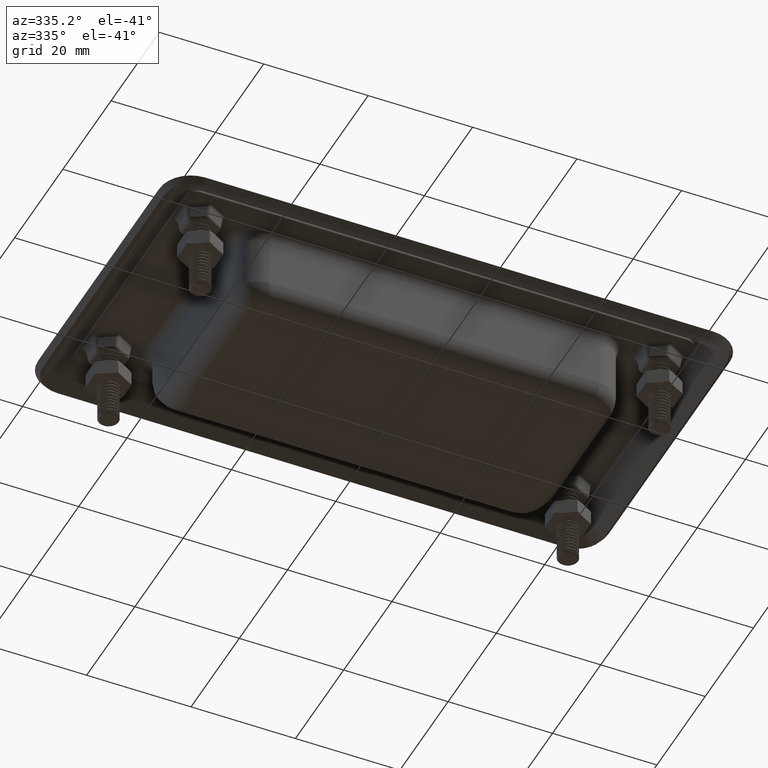
[diagram: clean part render]
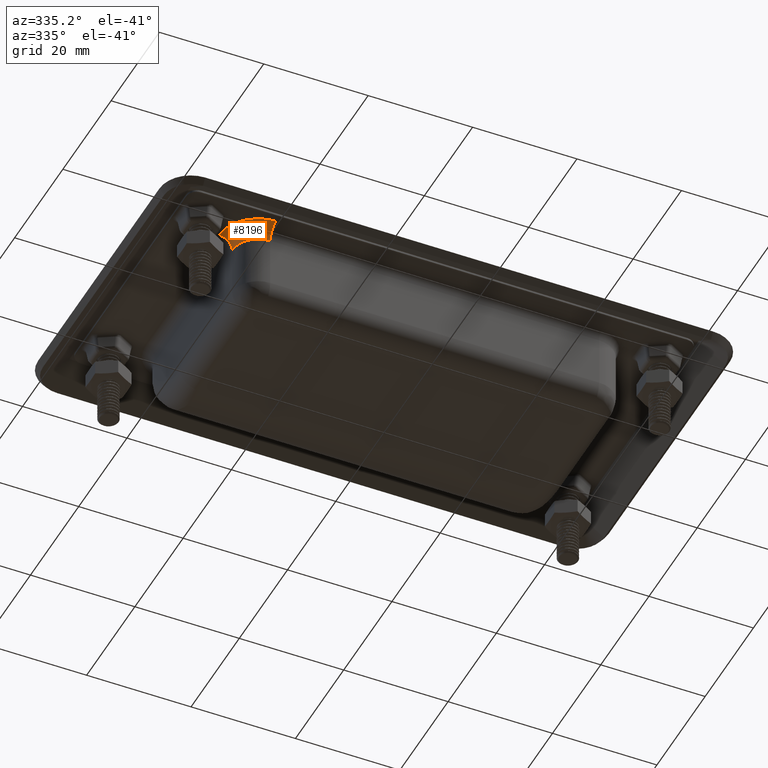
[diagram: same view with one face highlighted and labeled with its STEP entity id]
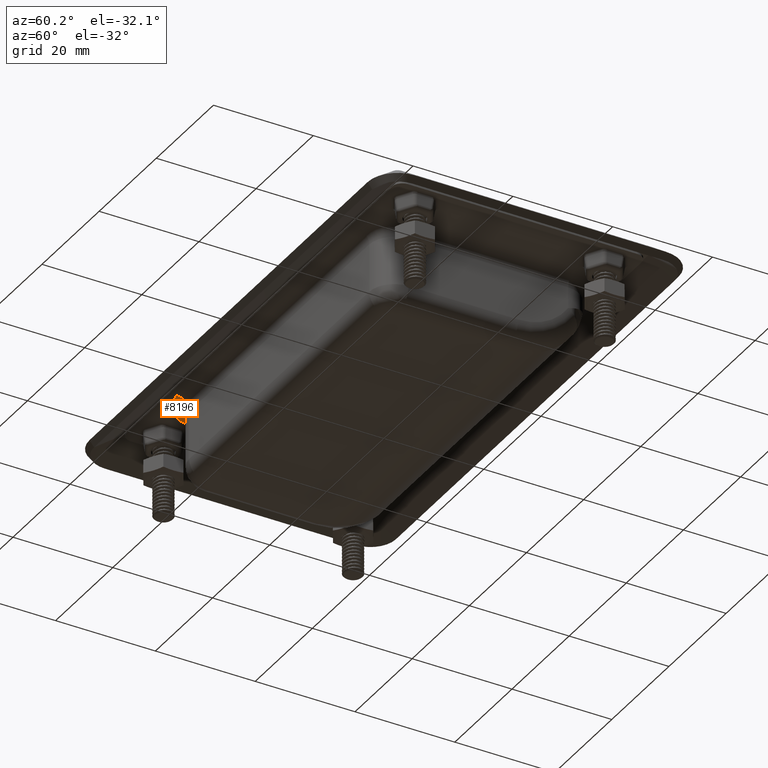
[diagram: same view with one face highlighted and labeled with its STEP entity id]
A machine part, auxiliary view. The second image highlights one B-rep face of the part: STEP entity #8196.
A second angle (auxiliary view) of the same face is appended — the face is thin or edge-on in the first view.
In plain terms, the highlighted toroidal blend (fillet) surface has major radius 7.5 mm and minor (blend) radius 2.5 mm.
Its self-contained STEP definition (entity closure, byte-faithful):
#201=TOROIDAL_SURFACE('',#8805,7.5,2.5);
#339=CIRCLE('',#8806,2.5);
#340=CIRCLE('',#8807,7.5);
#341=CIRCLE('',#8808,2.5);
#342=CIRCLE('',#8809,5.);
#927=FACE_OUTER_BOUND('',#1442,.T.);
#1442=EDGE_LOOP('',(#6100,#6101,#6102,#6103));
#3628=VERTEX_POINT('',#14131);
#3629=VERTEX_POINT('',#14132);
#3630=VERTEX_POINT('',#14134);
#3631=VERTEX_POINT('',#14136);
#4525=EDGE_CURVE('',#3628,#3629,#339,.T.);
#4526=EDGE_CURVE('',#3629,#3630,#340,.T.);
#4527=EDGE_CURVE('',#3630,#3631,#341,.T.);
#4528=EDGE_CURVE('',#3631,#3628,#342,.T.);
#6100=ORIENTED_EDGE('',*,*,#4525,.T.);
#6101=ORIENTED_EDGE('',*,*,#4526,.T.);
#6102=ORIENTED_EDGE('',*,*,#4527,.T.);
#6103=ORIENTED_EDGE('',*,*,#4528,.T.);
#8196=ADVANCED_FACE('',(#927),#201,.F.);
#8805=AXIS2_PLACEMENT_3D('',#14130,#9903,#9904);
#8806=AXIS2_PLACEMENT_3D('',#14133,#9905,#9906);
#8807=AXIS2_PLACEMENT_3D('',#14135,#9907,#9908);
#8808=AXIS2_PLACEMENT_3D('',#14137,#9909,#9910);
#8809=AXIS2_PLACEMENT_3D('',#14138,#9911,#9912);
#9903=DIRECTION('center_axis',(0.,3.7470027081099E-16,-1.));
#9904=DIRECTION('ref_axis',(0.,1.,0.));
#9905=DIRECTION('center_axis',(1.,0.,0.));
#9906=DIRECTION('ref_axis',(0.,1.,3.7470027081099E-16));
#9907=DIRECTION('center_axis',(0.,3.7470027081099E-16,-1.));
#9908=DIRECTION('ref_axis',(-0.707106781186548,-0.707106781186547,-2.64953102402887E-16));
#9909=DIRECTION('center_axis',(0.,1.,3.7470027081099E-16));
#9910=DIRECTION('ref_axis',(0.,-3.7470027081099E-16,1.));
#9911=DIRECTION('center_axis',(0.,-3.7470027081099E-16,1.));
#9912=DIRECTION('ref_axis',(-0.707106781186548,-0.707106781186547,-2.64953102402887E-16));
#14130=CARTESIAN_POINT('Origin',(-31.5,-16.,-47.5));
#14131=CARTESIAN_POINT('',(-31.5,-21.,-47.5));
#14132=CARTESIAN_POINT('',(-31.5,-23.5,-45.));
#14133=CARTESIAN_POINT('Origin',(-31.5,-23.5,-47.5));
#14134=CARTESIAN_POINT('',(-39.,-16.,-45.));
#14135=CARTESIAN_POINT('Origin',(-31.5,-16.,-45.));
#14136=CARTESIAN_POINT('',(-36.5,-16.,-47.5));
#14137=CARTESIAN_POINT('Origin',(-39.,-16.,-47.5));
#14138=CARTESIAN_POINT('Origin',(-31.5,-16.,-47.5));